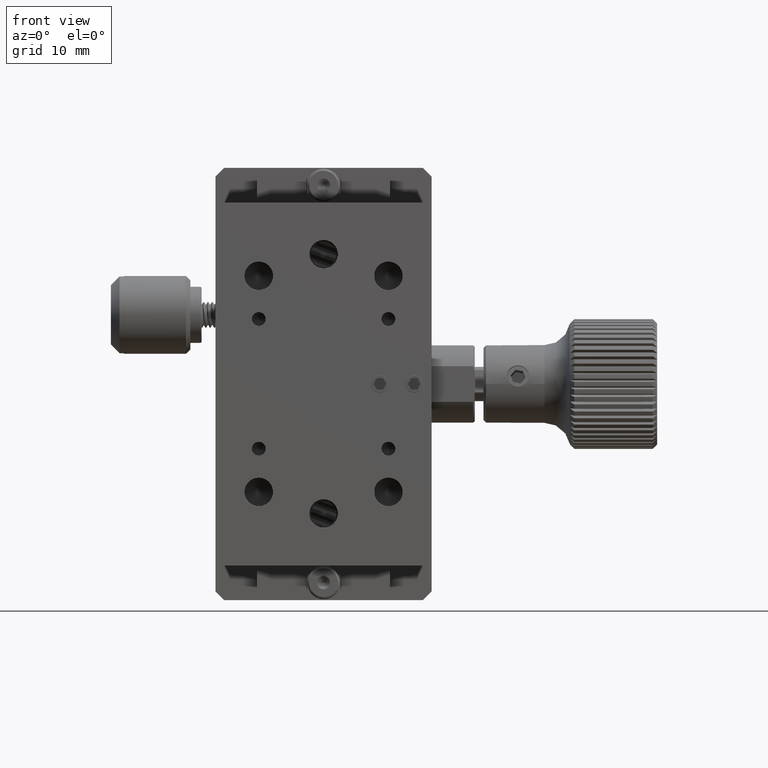
[diagram: clean part render]
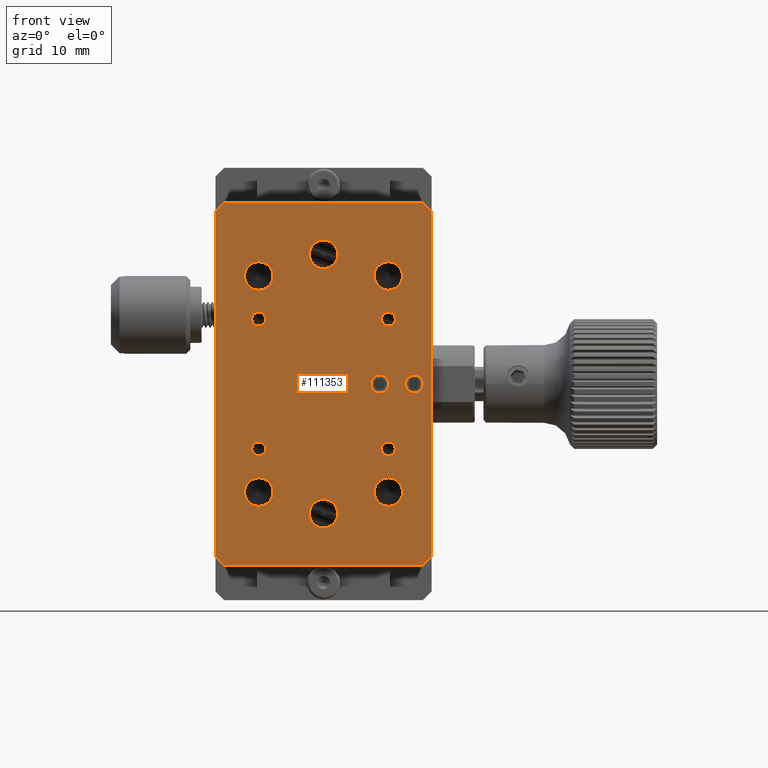
[diagram: same view with one face highlighted and labeled with its STEP entity id]
A machine part, front view. The second image highlights one B-rep face of the part: STEP entity #111353.
In plain terms, the highlighted planar face has unit normal (0, 1, 0).
Its self-contained STEP definition (entity closure, byte-faithful):
#638 = ORIENTED_EDGE ( 'NONE', *, *, #38067, .F. ) ;
#1389 = CARTESIAN_POINT ( 'NONE',  ( 12.50000000000051870, 0.9999999999992128519, 45.64461662145724574 ) ) ;
#1700 = DIRECTION ( 'NONE',  ( 0.000000000000000000, 0.000000000000000000, -1.000000000000000000 ) ) ;
#2286 = EDGE_CURVE ( 'NONE', #86969, #86969, #65697, .T. ) ;
#2771 = LINE ( 'NONE', #48876, #77407 ) ;
#3232 = FACE_BOUND ( 'NONE', #51311, .T. ) ;
#5354 = VERTEX_POINT ( 'NONE', #33970 ) ;
#5878 = EDGE_CURVE ( 'NONE', #113064, #93750, #88053, .T. ) ;
#5965 = VERTEX_POINT ( 'NONE', #33368 ) ;
#6000 = ORIENTED_EDGE ( 'NONE', *, *, #89529, .F. ) ;
#6252 = CARTESIAN_POINT ( 'NONE',  ( 7.500000000000517808, 0.9999999999992144062, 17.14461662145725640 ) ) ;
#6860 = DIRECTION ( 'NONE',  ( -0.000000000000000000, -1.000000000000000000, -0.000000000000000000 ) ) ;
#7534 = FACE_BOUND ( 'NONE', #95991, .T. ) ;
#8196 = VECTOR ( 'NONE', #40720, 1000.000000000000000 ) ;
#8205 = DIRECTION ( 'NONE',  ( 0.000000000000000000, 0.000000000000000000, -1.000000000000000000 ) ) ;
#8697 = LINE ( 'NONE', #46052, #112631 ) ;
#8712 = VERTEX_POINT ( 'NONE', #65317 ) ;
#9528 = DIRECTION ( 'NONE',  ( 0.000000000000000000, 0.000000000000000000, -1.000000000000000000 ) ) ;
#10418 = CARTESIAN_POINT ( 'NONE',  ( 7.500000000000517808, 0.9999999999992144062, 31.34461662145725924 ) ) ;
#11020 = ORIENTED_EDGE ( 'NONE', *, *, #79401, .F. ) ;
#11043 = EDGE_LOOP ( 'NONE', ( #114223 ) ) ;
#12881 = ORIENTED_EDGE ( 'NONE', *, *, #14661, .T. ) ;
#14661 = EDGE_CURVE ( 'NONE', #90031, #30830, #45251, .T. ) ;
#14681 = CARTESIAN_POINT ( 'NONE',  ( -7.499999999999483080, 0.9999999999992144062, 16.34461662145726280 ) ) ;
#15442 = DIRECTION ( 'NONE',  ( 0.000000000000000000, 0.000000000000000000, -1.000000000000000000 ) ) ;
#15561 = EDGE_CURVE ( 'NONE', #37799, #37799, #110247, .T. ) ;
#15640 = DIRECTION ( 'NONE',  ( 0.000000000000000000, -0.000000000000000000, 1.000000000000000000 ) ) ;
#17007 = AXIS2_PLACEMENT_3D ( 'NONE', #75420, #85383, #8205 ) ;
#17236 = ORIENTED_EDGE ( 'NONE', *, *, #85897, .F. ) ;
#18515 = CARTESIAN_POINT ( 'NONE',  ( -7.499999999999481304, 0.9999999999992130739, 35.49461662145725427 ) ) ;
#19200 = ORIENTED_EDGE ( 'NONE', *, *, #15561, .F. ) ;
#19532 = CIRCLE ( 'NONE', #75235, 1.649999999999993472 ) ;
#20361 = EDGE_LOOP ( 'NONE', ( #11020 ) ) ;
#20702 = EDGE_CURVE ( 'NONE', #8712, #107959, #39343, .T. ) ;
#20886 = AXIS2_PLACEMENT_3D ( 'NONE', #6252, #6860, #74687 ) ;
#21342 = DIRECTION ( 'NONE',  ( -0.000000000000000000, -1.000000000000000000, -0.000000000000000000 ) ) ;
#22199 = VERTEX_POINT ( 'NONE', #106873 ) ;
#24366 = FACE_BOUND ( 'NONE', #81483, .T. ) ;
#24768 = CARTESIAN_POINT ( 'NONE',  ( 7.500000000000520473, 0.9999999999992159605, 37.14461662145724574 ) ) ;
#24831 = VECTOR ( 'NONE', #93330, 1000.000000000000114 ) ;
#26146 = DIRECTION ( 'NONE',  ( -1.000000000000000000, -0.000000000000000000, 0.000000000000000000 ) ) ;
#26588 = DIRECTION ( 'NONE',  ( 0.000000000000000000, 0.000000000000000000, -1.000000000000000000 ) ) ;
#26990 = ORIENTED_EDGE ( 'NONE', *, *, #5878, .F. ) ;
#27084 = EDGE_CURVE ( 'NONE', #96302, #96302, #90876, .T. ) ;
#27999 = EDGE_CURVE ( 'NONE', #93750, #8712, #114609, .T. ) ;
#28174 = DIRECTION ( 'NONE',  ( 0.000000000000000000, 0.000000000000000000, -1.000000000000000000 ) ) ;
#29183 = CARTESIAN_POINT ( 'NONE',  ( -11.49999999999947953, 0.9999999999992128519, 3.644616621457245298 ) ) ;
#29296 = VERTEX_POINT ( 'NONE', #29183 ) ;
#30830 = VERTEX_POINT ( 'NONE', #102188 ) ;
#32935 = CARTESIAN_POINT ( 'NONE',  ( 11.50000000000051870, 0.9999999999992128519, 45.64461662145724574 ) ) ;
#33298 = AXIS2_PLACEMENT_3D ( 'NONE', #64779, #72894, #15640 ) ;
#33368 = CARTESIAN_POINT ( 'NONE',  ( 7.500000000000520473, 0.9999999999992159605, 10.49461662145725604 ) ) ;
#33459 = CARTESIAN_POINT ( 'NONE',  ( 12.50000000000051692, 0.9999999999992064126, 4.644616621457244854 ) ) ;
#33970 = CARTESIAN_POINT ( 'NONE',  ( 7.500000000000520473, 0.9999999999992159605, 35.49461662145725427 ) ) ;
#34298 = FACE_BOUND ( 'NONE', #20361, .T. ) ;
#34517 = CARTESIAN_POINT ( 'NONE',  ( 7.500000000000517808, 0.9999999999992144062, 32.14461662145724574 ) ) ;
#34699 = CARTESIAN_POINT ( 'NONE',  ( -7.499999999999480416, 0.9999999999992130739, 12.14461662145724574 ) ) ;
#34859 = CIRCLE ( 'NONE', #17007, 1.649999999999993472 ) ;
#35615 = CIRCLE ( 'NONE', #105234, 1.024999999999994582 ) ;
#37799 = VERTEX_POINT ( 'NONE', #10418 ) ;
#38067 = EDGE_CURVE ( 'NONE', #68902, #68902, #19532, .T. ) ;
#38146 = DIRECTION ( 'NONE',  ( 0.000000000000000000, 0.000000000000000000, -1.000000000000000000 ) ) ;
#39161 = AXIS2_PLACEMENT_3D ( 'NONE', #122637, #103941, #1700 ) ;
#39343 = LINE ( 'NONE', #1389, #72666 ) ;
#39528 = DIRECTION ( 'NONE',  ( -0.000000000000000000, -0.000000000000000000, -1.000000000000000000 ) ) ;
#40720 = DIRECTION ( 'NONE',  ( 0.000000000000000000, -0.000000000000000000, 1.000000000000000000 ) ) ;
#40750 = ORIENTED_EDGE ( 'NONE', *, *, #119056, .F. ) ;
#40842 = VERTEX_POINT ( 'NONE', #116819 ) ;
#42881 = DIRECTION ( 'NONE',  ( 0.7071067811865451302, 0.000000000000000000, -0.7071067811865500152 ) ) ;
#45007 = ORIENTED_EDGE ( 'NONE', *, *, #78543, .T. ) ;
#45091 = DIRECTION ( 'NONE',  ( -0.000000000000000000, -1.000000000000000000, -0.000000000000000000 ) ) ;
#45251 = LINE ( 'NONE', #33459, #92278 ) ;
#46052 = CARTESIAN_POINT ( 'NONE',  ( 12.50000000000051870, 0.9999999999992128519, 3.644616621457243077 ) ) ;
#47073 = EDGE_CURVE ( 'NONE', #22199, #22199, #94505, .T. ) ;
#47647 = EDGE_LOOP ( 'NONE', ( #6000 ) ) ;
#47871 = LINE ( 'NONE', #92708, #24831 ) ;
#48876 = CARTESIAN_POINT ( 'NONE',  ( 12.50000000000051870, 0.9999999999992132960, 45.64461662145724574 ) ) ;
#48959 = VECTOR ( 'NONE', #42881, 1000.000000000000114 ) ;
#50535 = FACE_BOUND ( 'NONE', #58873, .T. ) ;
#50817 = CARTESIAN_POINT ( 'NONE',  ( -7.499999999999480416, 0.9999999999992130739, 10.49461662145725249 ) ) ;
#51311 = EDGE_LOOP ( 'NONE', ( #109796 ) ) ;
#51666 = CARTESIAN_POINT ( 'NONE',  ( -11.49999999999948486, 0.9999999999992128519, 45.64461662145724574 ) ) ;
#52006 = CIRCLE ( 'NONE', #115657, 1.649999999999991696 ) ;
#52210 = AXIS2_PLACEMENT_3D ( 'NONE', #100856, #74667, #63500 ) ;
#54480 = VERTEX_POINT ( 'NONE', #14681 ) ;
#54623 = EDGE_LOOP ( 'NONE', ( #70904 ) ) ;
#55926 = CIRCLE ( 'NONE', #81763, 1.649999999999993472 ) ;
#56300 = CARTESIAN_POINT ( 'NONE',  ( 12.50000000000051870, 0.9999999999992130739, 44.64461662145723864 ) ) ;
#57077 = DIRECTION ( 'NONE',  ( -0.000000000000000000, -1.000000000000000000, -0.000000000000000000 ) ) ;
#58292 = EDGE_CURVE ( 'NONE', #60769, #60769, #52006, .T. ) ;
#58873 = EDGE_LOOP ( 'NONE', ( #638 ) ) ;
#58889 = VECTOR ( 'NONE', #98987, 1000.000000000000114 ) ;
#59417 = DIRECTION ( 'NONE',  ( 0.000000000000000000, 0.000000000000000000, -1.000000000000000000 ) ) ;
#60418 = EDGE_CURVE ( 'NONE', #40842, #40842, #55926, .T. ) ;
#60769 = VERTEX_POINT ( 'NONE', #98129 ) ;
#62168 = CIRCLE ( 'NONE', #52210, 0.7999999999999882760 ) ;
#62686 = AXIS2_PLACEMENT_3D ( 'NONE', #86934, #57077, #76979 ) ;
#63500 = DIRECTION ( 'NONE',  ( 0.000000000000000000, 0.000000000000000000, -1.000000000000000000 ) ) ;
#64779 = CARTESIAN_POINT ( 'NONE',  ( 12.50000000000051870, 0.9999999999992128519, 45.64461662145724574 ) ) ;
#65317 = CARTESIAN_POINT ( 'NONE',  ( -11.49999999999948308, 0.9999999999992128519, 45.64461662145724574 ) ) ;
#65671 = VERTEX_POINT ( 'NONE', #66290 ) ;
#65697 = CIRCLE ( 'NONE', #93503, 1.024999999999994582 ) ;
#65810 = CARTESIAN_POINT ( 'NONE',  ( 11.50000000000050981, 0.9999999999992080779, 3.644616621457244854 ) ) ;
#66290 = CARTESIAN_POINT ( 'NONE',  ( 6.500000000000524025, 0.9999999999992157385, 23.61961662145725427 ) ) ;
#67688 = CARTESIAN_POINT ( 'NONE',  ( 10.50000000000052225, 0.9999999999992164046, 23.61961662145726137 ) ) ;
#68037 = CARTESIAN_POINT ( 'NONE',  ( 5.135802713802722564E-13, 0.9999999999992146282, 9.644616621457245742 ) ) ;
#68902 = VERTEX_POINT ( 'NONE', #50817 ) ;
#70904 = ORIENTED_EDGE ( 'NONE', *, *, #27084, .F. ) ;
#71438 = DIRECTION ( 'NONE',  ( 0.7071067811865500152, 0.000000000000000000, 0.7071067811865451302 ) ) ;
#71468 = DIRECTION ( 'NONE',  ( -0.000000000000000000, -1.000000000000000000, -0.000000000000000000 ) ) ;
#71678 = FACE_OUTER_BOUND ( 'NONE', #89714, .T. ) ;
#71950 = CARTESIAN_POINT ( 'NONE',  ( 7.500000000000517808, 0.9999999999992144062, 16.34461662145726635 ) ) ;
#72277 = FACE_BOUND ( 'NONE', #47647, .T. ) ;
#72298 = ORIENTED_EDGE ( 'NONE', *, *, #91922, .F. ) ;
#72666 = VECTOR ( 'NONE', #78515, 1000.000000000000000 ) ;
#72894 = DIRECTION ( 'NONE',  ( 0.000000000000000000, 1.000000000000000000, 0.000000000000000000 ) ) ;
#74667 = DIRECTION ( 'NONE',  ( -0.000000000000000000, -1.000000000000000000, -0.000000000000000000 ) ) ;
#74687 = DIRECTION ( 'NONE',  ( 0.000000000000000000, 0.000000000000000000, -1.000000000000000000 ) ) ;
#75235 = AXIS2_PLACEMENT_3D ( 'NONE', #34699, #71468, #26588 ) ;
#75420 = CARTESIAN_POINT ( 'NONE',  ( 7.500000000000520473, 0.9999999999992159605, 12.14461662145724929 ) ) ;
#76079 = CARTESIAN_POINT ( 'NONE',  ( 11.50000000000051870, 0.9999999999992128519, 45.64461662145724574 ) ) ;
#76119 = EDGE_LOOP ( 'NONE', ( #99298 ) ) ;
#76957 = EDGE_LOOP ( 'NONE', ( #82479 ) ) ;
#76979 = DIRECTION ( 'NONE',  ( 0.000000000000000000, 0.000000000000000000, -1.000000000000000000 ) ) ;
#77407 = VECTOR ( 'NONE', #39528, 1000.000000000000000 ) ;
#78515 = DIRECTION ( 'NONE',  ( 1.000000000000000000, 0.000000000000000000, -0.000000000000000000 ) ) ;
#78521 = CIRCLE ( 'NONE', #20886, 0.7999999999999882760 ) ;
#78543 = EDGE_CURVE ( 'NONE', #113064, #29296, #47871, .T. ) ;
#79172 = FACE_BOUND ( 'NONE', #76957, .T. ) ;
#79401 = EDGE_CURVE ( 'NONE', #5965, #5965, #34859, .T. ) ;
#81411 = DIRECTION ( 'NONE',  ( -0.000000000000000000, -1.000000000000000000, -0.000000000000000000 ) ) ;
#81483 = EDGE_LOOP ( 'NONE', ( #116575 ) ) ;
#81763 = AXIS2_PLACEMENT_3D ( 'NONE', #68037, #21342, #38146 ) ;
#82211 = FACE_BOUND ( 'NONE', #108261, .T. ) ;
#82479 = ORIENTED_EDGE ( 'NONE', *, *, #88739, .F. ) ;
#84471 = AXIS2_PLACEMENT_3D ( 'NONE', #34517, #45091, #109263 ) ;
#85383 = DIRECTION ( 'NONE',  ( -0.000000000000000000, -1.000000000000000000, -0.000000000000000000 ) ) ;
#85452 = DIRECTION ( 'NONE',  ( -0.000000000000000000, -1.000000000000000000, -0.000000000000000000 ) ) ;
#85897 = EDGE_CURVE ( 'NONE', #90031, #29296, #8697, .T. ) ;
#86934 = CARTESIAN_POINT ( 'NONE',  ( -7.499999999999483080, 0.9999999999992144062, 32.14461662145724574 ) ) ;
#86969 = VERTEX_POINT ( 'NONE', #67688 ) ;
#88053 = LINE ( 'NONE', #96809, #8196 ) ;
#88496 = FACE_BOUND ( 'NONE', #76119, .T. ) ;
#88739 = EDGE_CURVE ( 'NONE', #54480, #54480, #62168, .T. ) ;
#89529 = EDGE_CURVE ( 'NONE', #5354, #5354, #107927, .T. ) ;
#89714 = EDGE_LOOP ( 'NONE', ( #45007, #17236, #12881, #40750, #114613, #122494, #122414, #26990 ) ) ;
#90031 = VERTEX_POINT ( 'NONE', #65810 ) ;
#90876 = CIRCLE ( 'NONE', #39161, 1.649999999999991696 ) ;
#91157 = VERTEX_POINT ( 'NONE', #56300 ) ;
#91922 = EDGE_CURVE ( 'NONE', #119276, #119276, #78521, .T. ) ;
#92172 = PLANE ( 'NONE',  #33298 ) ;
#92278 = VECTOR ( 'NONE', #71438, 1000.000000000000114 ) ;
#92708 = CARTESIAN_POINT ( 'NONE',  ( -12.49999999999948486, 0.9999999999992128519, 4.644616621457245742 ) ) ;
#93330 = DIRECTION ( 'NONE',  ( 0.7071067811865500152, 0.000000000000000000, -0.7071067811865451302 ) ) ;
#93503 = AXIS2_PLACEMENT_3D ( 'NONE', #107942, #106736, #59417 ) ;
#93750 = VERTEX_POINT ( 'NONE', #107618 ) ;
#94505 = CIRCLE ( 'NONE', #62686, 0.7999999999999882760 ) ;
#95991 = EDGE_LOOP ( 'NONE', ( #19200 ) ) ;
#96302 = VERTEX_POINT ( 'NONE', #18515 ) ;
#96646 = CARTESIAN_POINT ( 'NONE',  ( 5.135802713802722564E-13, 0.9999999999992146282, 39.64461662145724574 ) ) ;
#96809 = CARTESIAN_POINT ( 'NONE',  ( -12.49999999999948486, 0.9999999999992128519, 45.64461662145724574 ) ) ;
#97706 = EDGE_LOOP ( 'NONE', ( #72298 ) ) ;
#98129 = CARTESIAN_POINT ( 'NONE',  ( 5.135802713802722564E-13, 0.9999999999992146282, 37.99461662145725427 ) ) ;
#98798 = EDGE_CURVE ( 'NONE', #107959, #91157, #99548, .T. ) ;
#98987 = DIRECTION ( 'NONE',  ( 0.7071067811865451302, 0.000000000000000000, 0.7071067811865500152 ) ) ;
#99298 = ORIENTED_EDGE ( 'NONE', *, *, #120294, .F. ) ;
#99548 = LINE ( 'NONE', #32935, #48959 ) ;
#100130 = CARTESIAN_POINT ( 'NONE',  ( -12.49999999999949019, 0.9999999999992128519, 4.644616621457254624 ) ) ;
#100856 = CARTESIAN_POINT ( 'NONE',  ( -7.499999999999483080, 0.9999999999992144062, 17.14461662145725285 ) ) ;
#100921 = FACE_BOUND ( 'NONE', #54623, .T. ) ;
#102188 = CARTESIAN_POINT ( 'NONE',  ( 12.50000000000052047, 0.9999999999992064126, 4.644616621457248407 ) ) ;
#103933 = AXIS2_PLACEMENT_3D ( 'NONE', #24768, #81411, #15442 ) ;
#103941 = DIRECTION ( 'NONE',  ( -0.000000000000000000, -1.000000000000000000, -0.000000000000000000 ) ) ;
#105234 = AXIS2_PLACEMENT_3D ( 'NONE', #114090, #107221, #9528 ) ;
#106736 = DIRECTION ( 'NONE',  ( -0.000000000000000000, -1.000000000000000000, -0.000000000000000000 ) ) ;
#106873 = CARTESIAN_POINT ( 'NONE',  ( -7.499999999999483080, 0.9999999999992144062, 31.34461662145725924 ) ) ;
#107221 = DIRECTION ( 'NONE',  ( -0.000000000000000000, -1.000000000000000000, -0.000000000000000000 ) ) ;
#107618 = CARTESIAN_POINT ( 'NONE',  ( -12.49999999999948308, 0.9999999999992128519, 44.64461662145723864 ) ) ;
#107927 = CIRCLE ( 'NONE', #103933, 1.649999999999991696 ) ;
#107942 = CARTESIAN_POINT ( 'NONE',  ( 10.50000000000052225, 0.9999999999992164046, 24.64461662145725640 ) ) ;
#107959 = VERTEX_POINT ( 'NONE', #76079 ) ;
#108261 = EDGE_LOOP ( 'NONE', ( #113945 ) ) ;
#109263 = DIRECTION ( 'NONE',  ( 0.000000000000000000, 0.000000000000000000, -1.000000000000000000 ) ) ;
#109796 = ORIENTED_EDGE ( 'NONE', *, *, #2286, .F. ) ;
#110247 = CIRCLE ( 'NONE', #84471, 0.7999999999999882760 ) ;
#111353 = ADVANCED_FACE ( 'NONE', ( #71678, #24366, #119605, #34298, #72277, #100921, #50535, #88496, #3232, #79172, #112082, #7534, #82211 ), #92172, .F. ) ;
#112082 = FACE_BOUND ( 'NONE', #97706, .T. ) ;
#112631 = VECTOR ( 'NONE', #26146, 1000.000000000000000 ) ;
#113064 = VERTEX_POINT ( 'NONE', #100130 ) ;
#113945 = ORIENTED_EDGE ( 'NONE', *, *, #47073, .F. ) ;
#114090 = CARTESIAN_POINT ( 'NONE',  ( 6.500000000000524025, 0.9999999999992157385, 24.64461662145724929 ) ) ;
#114223 = ORIENTED_EDGE ( 'NONE', *, *, #60418, .F. ) ;
#114609 = LINE ( 'NONE', #51666, #58889 ) ;
#114613 = ORIENTED_EDGE ( 'NONE', *, *, #98798, .F. ) ;
#115657 = AXIS2_PLACEMENT_3D ( 'NONE', #96646, #85452, #28174 ) ;
#116575 = ORIENTED_EDGE ( 'NONE', *, *, #58292, .F. ) ;
#116819 = CARTESIAN_POINT ( 'NONE',  ( 5.135802713802722564E-13, 0.9999999999992146282, 7.994616621457251604 ) ) ;
#119056 = EDGE_CURVE ( 'NONE', #91157, #30830, #2771, .T. ) ;
#119276 = VERTEX_POINT ( 'NONE', #71950 ) ;
#119605 = FACE_BOUND ( 'NONE', #11043, .T. ) ;
#120294 = EDGE_CURVE ( 'NONE', #65671, #65671, #35615, .T. ) ;
#122414 = ORIENTED_EDGE ( 'NONE', *, *, #27999, .F. ) ;
#122494 = ORIENTED_EDGE ( 'NONE', *, *, #20702, .F. ) ;
#122637 = CARTESIAN_POINT ( 'NONE',  ( -7.499999999999481304, 0.9999999999992130739, 37.14461662145724574 ) ) ;